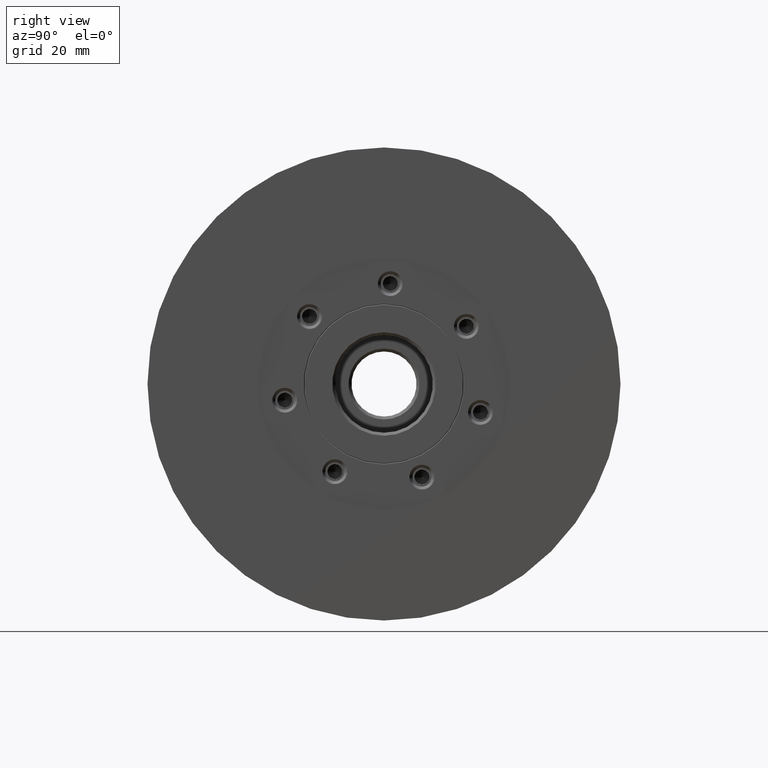
[diagram: clean part render]
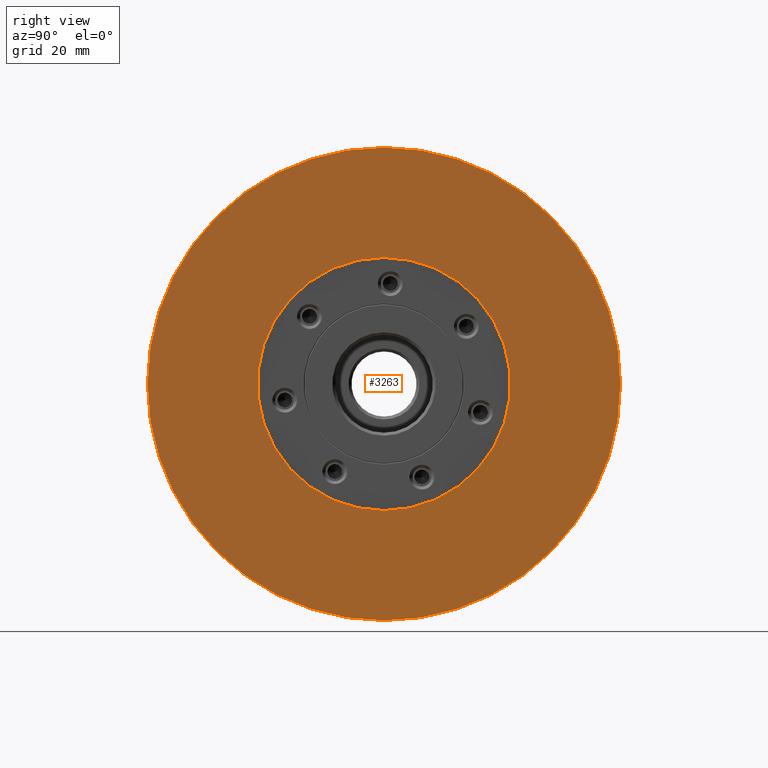
[diagram: same view with one face highlighted and labeled with its STEP entity id]
A machine part, right view. The second image highlights one B-rep face of the part: STEP entity #3263.
In plain terms, the highlighted planar face has unit normal (-1, 0, 0).
Its self-contained STEP definition (entity closure, byte-faithful):
#26 = ORIENTED_EDGE ( 'NONE', *, *, #4999, .F. ) ;
#104 = CIRCLE ( 'NONE', #4637, 40.00000000000000000 ) ;
#157 = CARTESIAN_POINT ( 'NONE',  ( 0.2502733700000122630, -40.00000000000000000, 0.0000000000000000000 ) ) ;
#261 = FACE_BOUND ( 'NONE', #2535, .T. ) ;
#301 = EDGE_CURVE ( 'NONE', #2984, #4151, #2845, .T. ) ;
#557 = DIRECTION ( 'NONE',  ( 0.0000000000000000000, 0.0000000000000000000, -1.000000000000000000 ) ) ;
#644 = AXIS2_PLACEMENT_3D ( 'NONE', #157, #1773, #3738 ) ;
#706 = EDGE_CURVE ( 'NONE', #4734, #2167, #2724, .T. ) ;
#1229 = EDGE_CURVE ( 'NONE', #4151, #2984, #104, .T. ) ;
#1560 = ORIENTED_EDGE ( 'NONE', *, *, #1229, .T. ) ;
#1773 = DIRECTION ( 'NONE',  ( -1.000000000000000000, 0.0000000000000000000, 0.0000000000000000000 ) ) ;
#1948 = DIRECTION ( 'NONE',  ( 0.0000000000000000000, 0.0000000000000000000, -1.000000000000000000 ) ) ;
#2006 = CARTESIAN_POINT ( 'NONE',  ( 0.2502733700000120409, 0.0000000000000000000, -21.39442974140757414 ) ) ;
#2167 = VERTEX_POINT ( 'NONE', #3117 ) ;
#2501 = DIRECTION ( 'NONE',  ( 0.0000000000000000000, 0.0000000000000000000, -1.000000000000000000 ) ) ;
#2519 = ORIENTED_EDGE ( 'NONE', *, *, #301, .T. ) ;
#2535 = EDGE_LOOP ( 'NONE', ( #3249, #26 ) ) ;
#2643 = EDGE_LOOP ( 'NONE', ( #2519, #1560 ) ) ;
#2724 = CIRCLE ( 'NONE', #4066, 21.39442974140757414 ) ;
#2771 = DIRECTION ( 'NONE',  ( 1.000000000000000000, -0.0000000000000000000, -0.0000000000000000000 ) ) ;
#2842 = DIRECTION ( 'NONE',  ( 1.000000000000000000, -0.0000000000000000000, -0.0000000000000000000 ) ) ;
#2845 = CIRCLE ( 'NONE', #4480, 40.00000000000000000 ) ;
#2984 = VERTEX_POINT ( 'NONE', #4795 ) ;
#3106 = FACE_OUTER_BOUND ( 'NONE', #2643, .T. ) ;
#3117 = CARTESIAN_POINT ( 'NONE',  ( 0.2502733700000120409, 2.620061990239771764E-15, 21.39442974140757414 ) ) ;
#3249 = ORIENTED_EDGE ( 'NONE', *, *, #706, .F. ) ;
#3263 = ADVANCED_FACE ( 'NONE', ( #261, #3106 ), #4256, .F. ) ;
#3266 = CARTESIAN_POINT ( 'NONE',  ( 0.2502733700000120409, 0.0000000000000000000, 0.0000000000000000000 ) ) ;
#3317 = CARTESIAN_POINT ( 'NONE',  ( 0.2502733700000120409, 0.0000000000000000000, 0.0000000000000000000 ) ) ;
#3472 = AXIS2_PLACEMENT_3D ( 'NONE', #3690, #4455, #2501 ) ;
#3521 = CARTESIAN_POINT ( 'NONE',  ( 0.2502733700000120409, 0.0000000000000000000, 0.0000000000000000000 ) ) ;
#3611 = CARTESIAN_POINT ( 'NONE',  ( 0.2502733700000120409, 4.898587196589413026E-15, 40.00000000000000000 ) ) ;
#3690 = CARTESIAN_POINT ( 'NONE',  ( 0.2502733700000120409, 0.0000000000000000000, 0.0000000000000000000 ) ) ;
#3738 = DIRECTION ( 'NONE',  ( 0.0000000000000000000, 0.0000000000000000000, 1.000000000000000000 ) ) ;
#4003 = DIRECTION ( 'NONE',  ( 0.0000000000000000000, 0.0000000000000000000, -1.000000000000000000 ) ) ;
#4066 = AXIS2_PLACEMENT_3D ( 'NONE', #3521, #2771, #1948 ) ;
#4151 = VERTEX_POINT ( 'NONE', #3611 ) ;
#4256 = PLANE ( 'NONE',  #644 ) ;
#4455 = DIRECTION ( 'NONE',  ( 1.000000000000000000, -0.0000000000000000000, -0.0000000000000000000 ) ) ;
#4480 = AXIS2_PLACEMENT_3D ( 'NONE', #3317, #4890, #557 ) ;
#4507 = CIRCLE ( 'NONE', #3472, 21.39442974140757414 ) ;
#4637 = AXIS2_PLACEMENT_3D ( 'NONE', #3266, #2842, #4003 ) ;
#4734 = VERTEX_POINT ( 'NONE', #2006 ) ;
#4795 = CARTESIAN_POINT ( 'NONE',  ( 0.2502733700000120409, 0.0000000000000000000, -40.00000000000000000 ) ) ;
#4890 = DIRECTION ( 'NONE',  ( 1.000000000000000000, -0.0000000000000000000, -0.0000000000000000000 ) ) ;
#4999 = EDGE_CURVE ( 'NONE', #2167, #4734, #4507, .T. ) ;